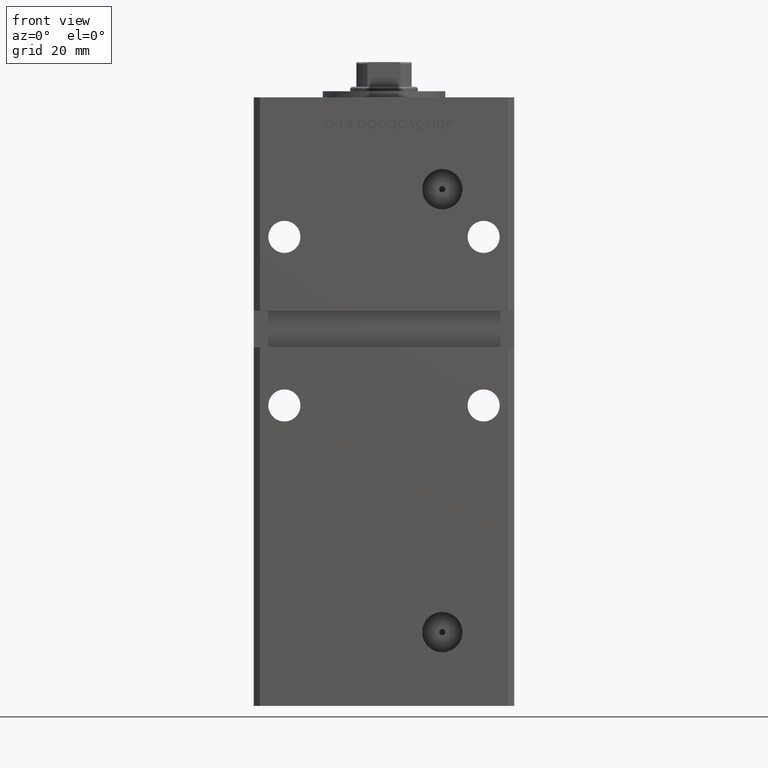
[diagram: clean part render]
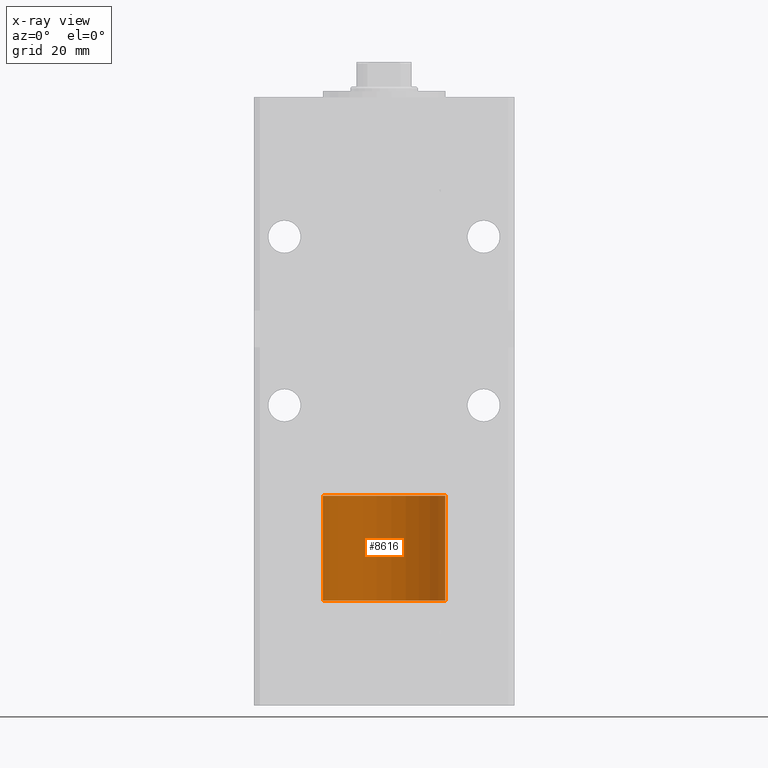
[diagram: x-ray — body ghosted, one internal face saturated and labeled with its STEP entity id]
A machine part, front view, then the same camera in x-ray: the body is ghosted and one INTERNAL B-rep face — a face not visible from any outside direction — is saturated and labeled: STEP entity #8616.
In plain terms, the highlighted cylindrical surface (partial cylindrical patch) has radius 20 mm, axis along (-0, -0, -1).
Its self-contained STEP definition (entity closure, byte-faithful):
#937 = EDGE_LOOP ( 'NONE', ( #52662, #33284, #15940, #41410 ) ) ;
#1066 = VERTEX_POINT ( 'NONE', #10929 ) ;
#2550 = FACE_OUTER_BOUND ( 'NONE', #937, .T. ) ;
#3082 = CYLINDRICAL_SURFACE ( 'NONE', #42445, 20.00000000000000000 ) ;
#3346 = CARTESIAN_POINT ( 'NONE',  ( 0.000000000000000000, 0.000000000000000000, 34.25000000000000000 ) ) ;
#6824 = CIRCLE ( 'NONE', #29173, 20.00000000000000000 ) ;
#6969 = CIRCLE ( 'NONE', #15574, 20.00000000000000000 ) ;
#8616 = ADVANCED_FACE ( 'NONE', ( #2550 ), #3082, .T. ) ;
#10633 = DIRECTION ( 'NONE',  ( -1.000000000000000000, 0.000000000000000000, 0.000000000000000000 ) ) ;
#10929 = CARTESIAN_POINT ( 'NONE',  ( 20.00000000000000000, 2.449293598294706513E-15, 0.000000000000000000 ) ) ;
#14453 = EDGE_CURVE ( 'NONE', #44917, #1066, #18980, .T. ) ;
#15574 = AXIS2_PLACEMENT_3D ( 'NONE', #37580, #50220, #25488 ) ;
#15940 = ORIENTED_EDGE ( 'NONE', *, *, #48754, .T. ) ;
#17105 = CARTESIAN_POINT ( 'NONE',  ( -20.00000000000000000, 0.000000000000000000, 34.25000000000000000 ) ) ;
#18980 = LINE ( 'NONE', #38597, #27929 ) ;
#21398 = DIRECTION ( 'NONE',  ( -0.000000000000000000, -0.000000000000000000, -1.000000000000000000 ) ) ;
#25488 = DIRECTION ( 'NONE',  ( 1.000000000000000000, 0.000000000000000000, 0.000000000000000000 ) ) ;
#25687 = EDGE_CURVE ( 'NONE', #42863, #26476, #50689, .T. ) ;
#26476 = VERTEX_POINT ( 'NONE', #45017 ) ;
#26609 = CARTESIAN_POINT ( 'NONE',  ( 20.00000000000000000, 2.449293598294706513E-15, 34.25000000000000000 ) ) ;
#27929 = VECTOR ( 'NONE', #35360, 1000.000000000000000 ) ;
#29173 = AXIS2_PLACEMENT_3D ( 'NONE', #36661, #52807, #53073 ) ;
#30574 = CARTESIAN_POINT ( 'NONE',  ( -20.00000000000000000, 0.000000000000000000, 34.25000000000000000 ) ) ;
#31067 = DIRECTION ( 'NONE',  ( -0.000000000000000000, -0.000000000000000000, -1.000000000000000000 ) ) ;
#33284 = ORIENTED_EDGE ( 'NONE', *, *, #14453, .T. ) ;
#35360 = DIRECTION ( 'NONE',  ( -0.000000000000000000, -0.000000000000000000, -1.000000000000000000 ) ) ;
#36661 = CARTESIAN_POINT ( 'NONE',  ( 0.000000000000000000, 0.000000000000000000, 34.25000000000000000 ) ) ;
#37580 = CARTESIAN_POINT ( 'NONE',  ( 0.000000000000000000, 0.000000000000000000, 0.000000000000000000 ) ) ;
#38597 = CARTESIAN_POINT ( 'NONE',  ( 20.00000000000000000, 2.449293598294706513E-15, 34.25000000000000000 ) ) ;
#41410 = ORIENTED_EDGE ( 'NONE', *, *, #25687, .F. ) ;
#42445 = AXIS2_PLACEMENT_3D ( 'NONE', #3346, #31067, #10633 ) ;
#42863 = VERTEX_POINT ( 'NONE', #30574 ) ;
#44299 = EDGE_CURVE ( 'NONE', #44917, #42863, #6824, .T. ) ;
#44917 = VERTEX_POINT ( 'NONE', #26609 ) ;
#45017 = CARTESIAN_POINT ( 'NONE',  ( -20.00000000000000000, 0.000000000000000000, 0.000000000000000000 ) ) ;
#45075 = VECTOR ( 'NONE', #21398, 1000.000000000000000 ) ;
#48754 = EDGE_CURVE ( 'NONE', #1066, #26476, #6969, .T. ) ;
#50220 = DIRECTION ( 'NONE',  ( 0.000000000000000000, 0.000000000000000000, 1.000000000000000000 ) ) ;
#50689 = LINE ( 'NONE', #17105, #45075 ) ;
#52662 = ORIENTED_EDGE ( 'NONE', *, *, #44299, .F. ) ;
#52807 = DIRECTION ( 'NONE',  ( 0.000000000000000000, 0.000000000000000000, 1.000000000000000000 ) ) ;
#53073 = DIRECTION ( 'NONE',  ( 1.000000000000000000, 0.000000000000000000, 0.000000000000000000 ) ) ;